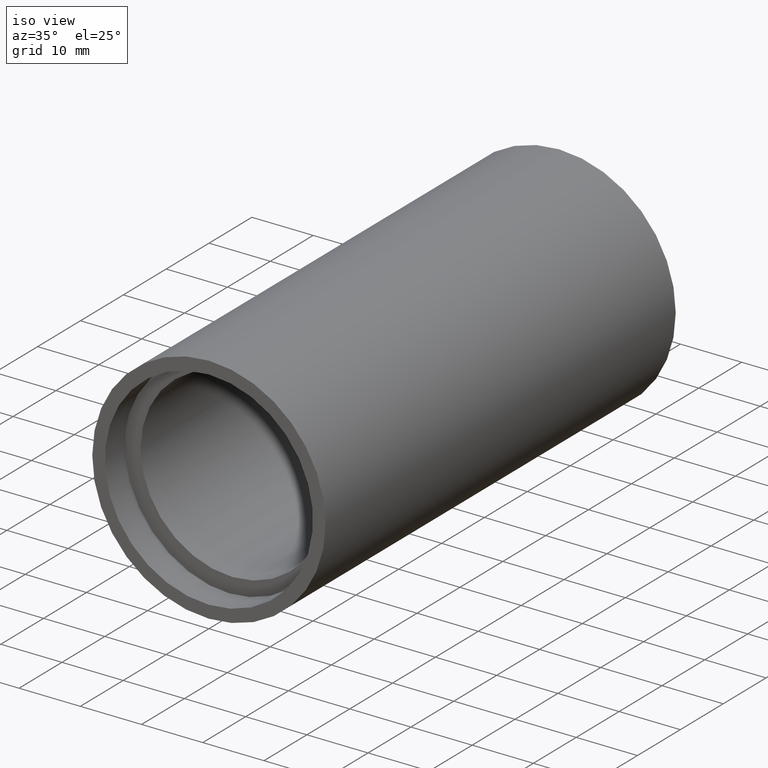
[diagram: clean part render]
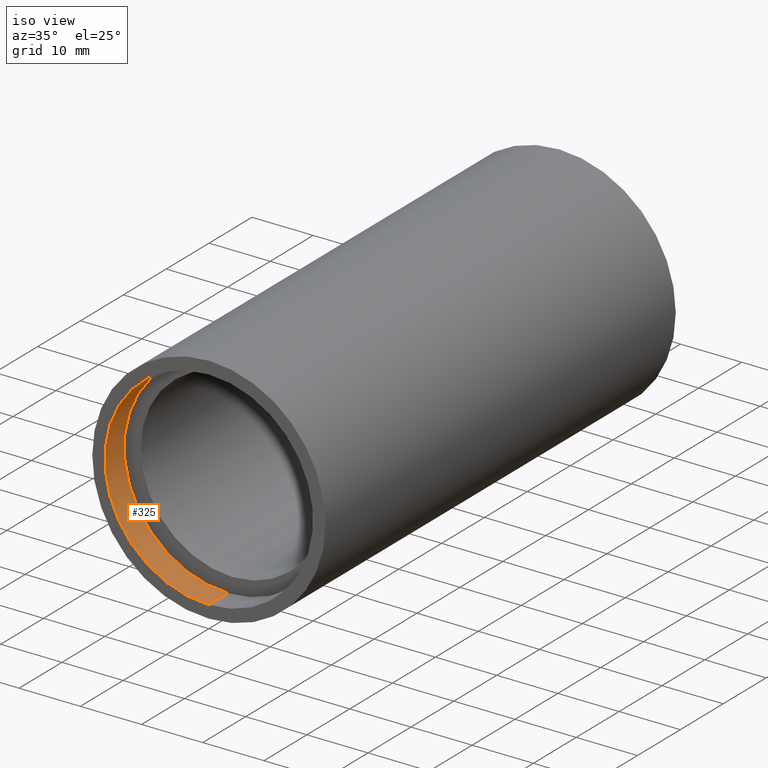
[diagram: same view with one face highlighted and labeled with its STEP entity id]
A machine part, iso view. The second image highlights one B-rep face of the part: STEP entity #325.
In plain terms, the highlighted cylindrical surface (partial cylindrical patch) has radius 17 mm, axis along (-0, 1, -0).
Its self-contained STEP definition (entity closure, byte-faithful):
#14 = CARTESIAN_POINT ( 'NONE',  ( 0.0000000000000000000, 4.499999999999976000, 17.00000000000002100 ) ) ;
#35 = LINE ( 'NONE', #308, #396 ) ;
#55 = CARTESIAN_POINT ( 'NONE',  ( 0.0000000000000000000, -2.775557561562891400E-014, 17.00000000000002100 ) ) ;
#67 = EDGE_LOOP ( 'NONE', ( #368, #493, #247, #525 ) ) ;
#70 = DIRECTION ( 'NONE',  ( 0.0000000000000000000, 0.0000000000000000000, 1.000000000000000000 ) ) ;
#73 = DIRECTION ( 'NONE',  ( -0.0000000000000000000, 1.000000000000000000, -0.0000000000000000000 ) ) ;
#86 = VERTEX_POINT ( 'NONE', #55 ) ;
#123 = CIRCLE ( 'NONE', #177, 17.00000000000002100 ) ;
#147 = VERTEX_POINT ( 'NONE', #427 ) ;
#177 = AXIS2_PLACEMENT_3D ( 'NONE', #476, #189, #529 ) ;
#189 = DIRECTION ( 'NONE',  ( -0.0000000000000000000, 1.000000000000000000, -0.0000000000000000000 ) ) ;
#247 = ORIENTED_EDGE ( 'NONE', *, *, #528, .T. ) ;
#272 = CARTESIAN_POINT ( 'NONE',  ( 0.0000000000000000000, -2.775557561562891400E-014, 0.0000000000000000000 ) ) ;
#276 = LINE ( 'NONE', #429, #326 ) ;
#308 = CARTESIAN_POINT ( 'NONE',  ( 0.0000000000000000000, 161.3761669434274500, 17.00000000000002100 ) ) ;
#311 = AXIS2_PLACEMENT_3D ( 'NONE', #547, #436, #347 ) ;
#316 = CYLINDRICAL_SURFACE ( 'NONE', #311, 17.00000000000002100 ) ;
#323 = VERTEX_POINT ( 'NONE', #14 ) ;
#325 = ADVANCED_FACE ( 'NONE', ( #341 ), #316, .F. ) ;
#326 = VECTOR ( 'NONE', #439, 1000.000000000000000 ) ;
#341 = FACE_OUTER_BOUND ( 'NONE', #67, .T. ) ;
#347 = DIRECTION ( 'NONE',  ( 0.0000000000000000000, 0.0000000000000000000, 1.000000000000000000 ) ) ;
#355 = EDGE_CURVE ( 'NONE', #467, #86, #365, .T. ) ;
#365 = CIRCLE ( 'NONE', #477, 17.00000000000002100 ) ;
#368 = ORIENTED_EDGE ( 'NONE', *, *, #355, .F. ) ;
#393 = DIRECTION ( 'NONE',  ( -0.0000000000000000000, 1.000000000000000000, -0.0000000000000000000 ) ) ;
#396 = VECTOR ( 'NONE', #393, 1000.000000000000000 ) ;
#427 = CARTESIAN_POINT ( 'NONE',  ( 2.081899558550503000E-015, 4.499999999999976000, -17.00000000000002100 ) ) ;
#429 = CARTESIAN_POINT ( 'NONE',  ( 2.081899558550503000E-015, 161.3761669434274500, -17.00000000000002100 ) ) ;
#436 = DIRECTION ( 'NONE',  ( -0.0000000000000000000, 1.000000000000000000, -0.0000000000000000000 ) ) ;
#439 = DIRECTION ( 'NONE',  ( -0.0000000000000000000, 1.000000000000000000, -0.0000000000000000000 ) ) ;
#467 = VERTEX_POINT ( 'NONE', #507 ) ;
#476 = CARTESIAN_POINT ( 'NONE',  ( 0.0000000000000000000, 4.499999999999976000, 0.0000000000000000000 ) ) ;
#477 = AXIS2_PLACEMENT_3D ( 'NONE', #272, #73, #70 ) ;
#493 = ORIENTED_EDGE ( 'NONE', *, *, #615, .T. ) ;
#507 = CARTESIAN_POINT ( 'NONE',  ( 2.081899558550503000E-015, -2.775557561562891400E-014, -17.00000000000002100 ) ) ;
#525 = ORIENTED_EDGE ( 'NONE', *, *, #610, .F. ) ;
#528 = EDGE_CURVE ( 'NONE', #147, #323, #123, .T. ) ;
#529 = DIRECTION ( 'NONE',  ( 0.0000000000000000000, 0.0000000000000000000, 1.000000000000000000 ) ) ;
#547 = CARTESIAN_POINT ( 'NONE',  ( 0.0000000000000000000, 161.3761669434274500, 0.0000000000000000000 ) ) ;
#610 = EDGE_CURVE ( 'NONE', #86, #323, #35, .T. ) ;
#615 = EDGE_CURVE ( 'NONE', #467, #147, #276, .T. ) ;